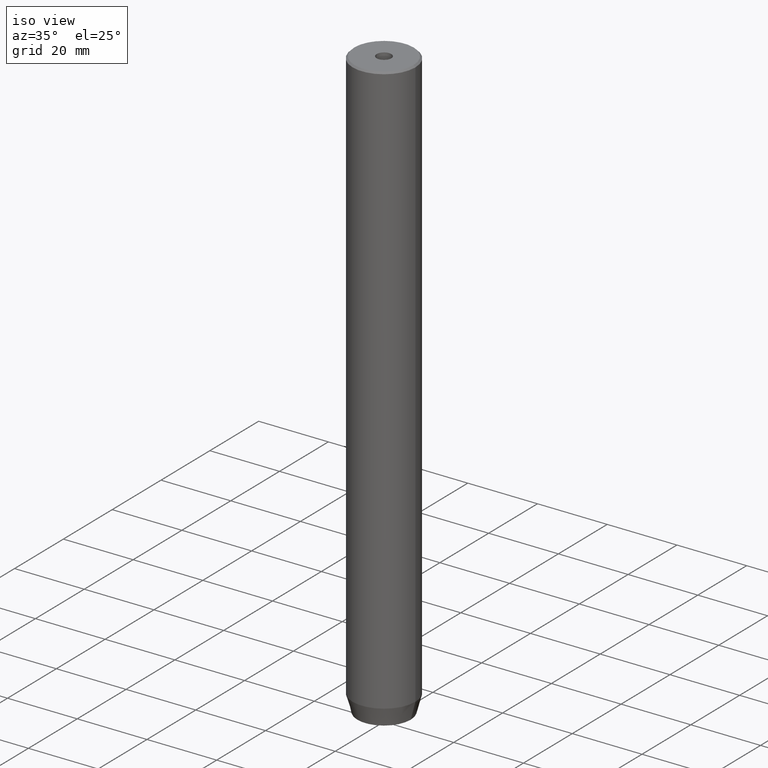
[diagram: clean part render]
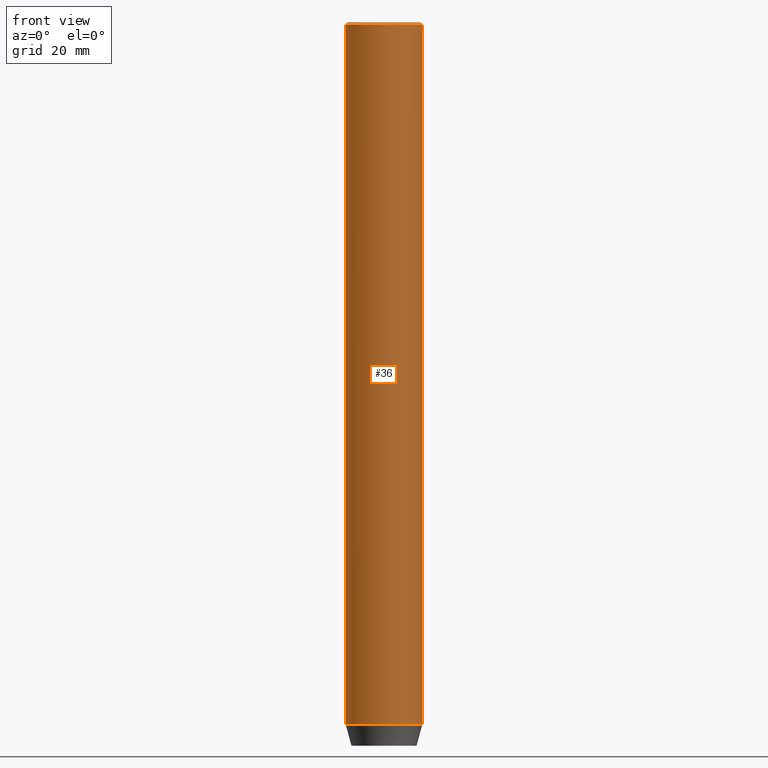
[diagram: tour spotlight — one face highlighted and labeled with its STEP entity id]
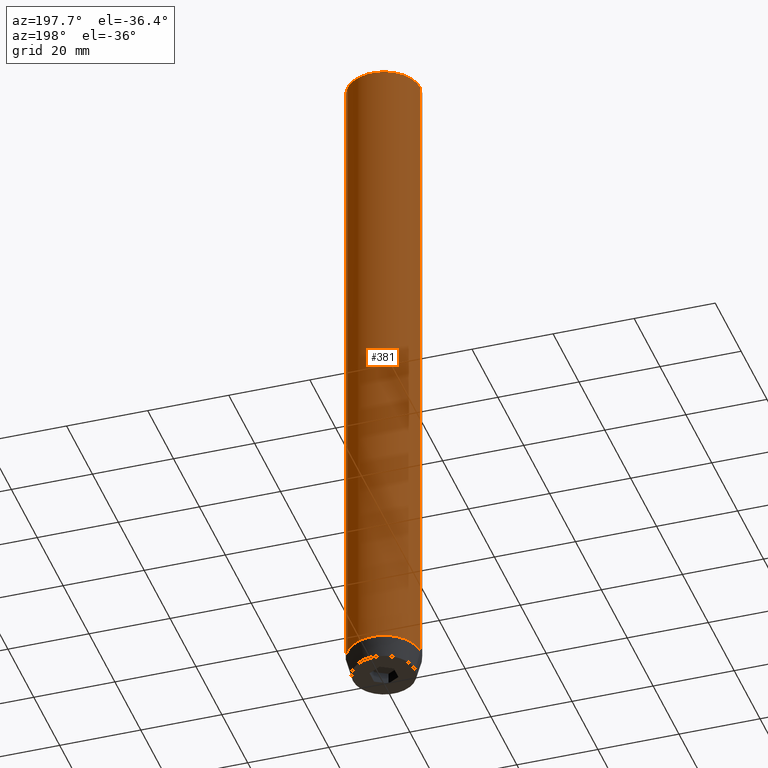
[diagram: tour spotlight — one face highlighted and labeled with its STEP entity id]
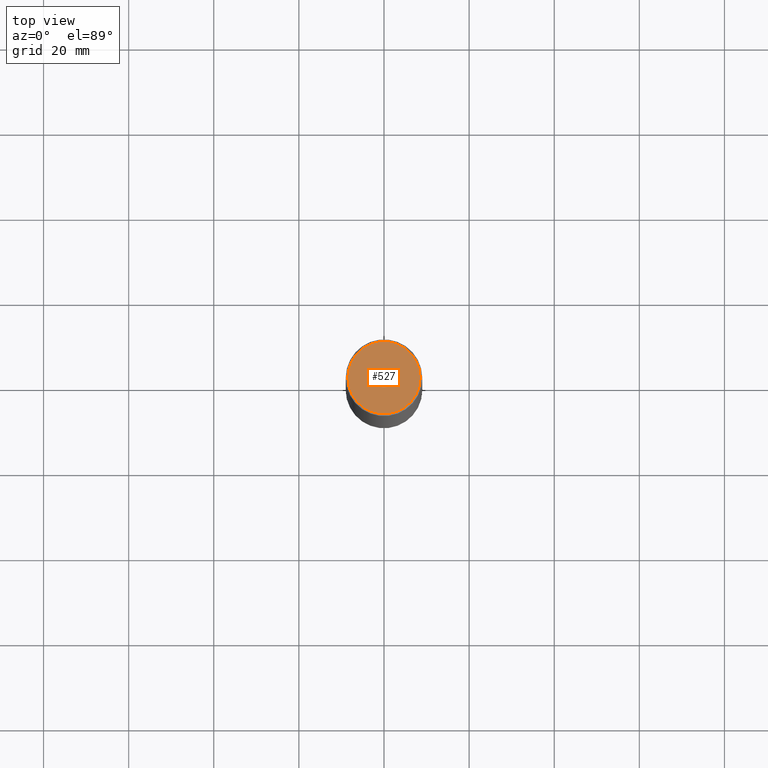
[diagram: tour spotlight — one face highlighted and labeled with its STEP entity id]
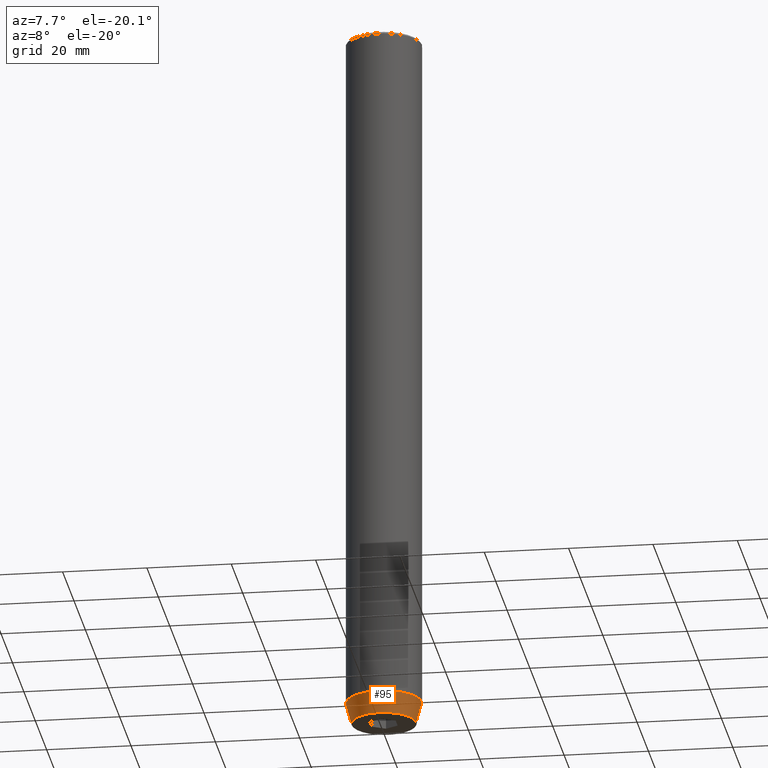
[diagram: tour spotlight — one face highlighted and labeled with its STEP entity id]
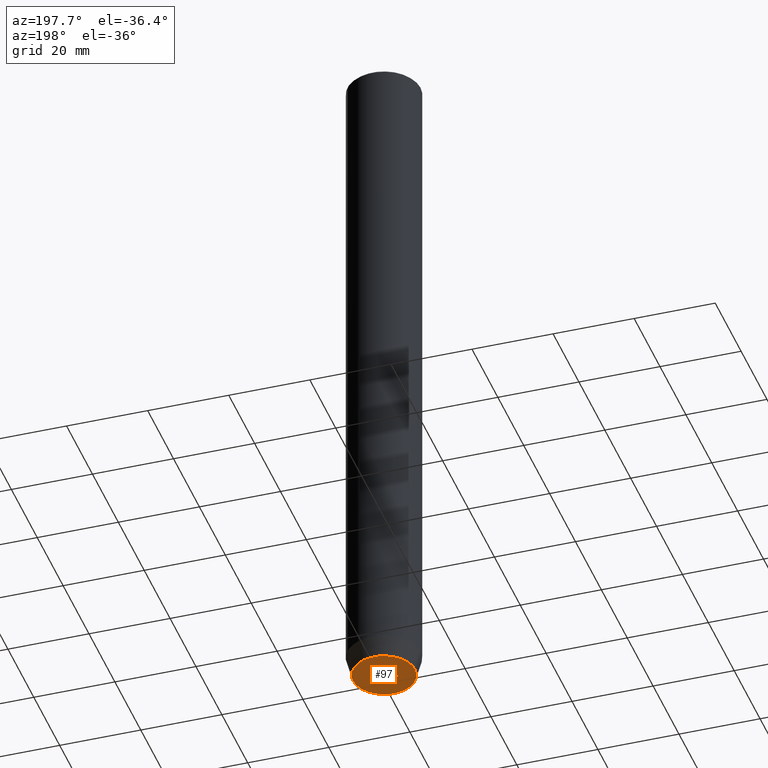
[diagram: tour spotlight — one face highlighted and labeled with its STEP entity id]
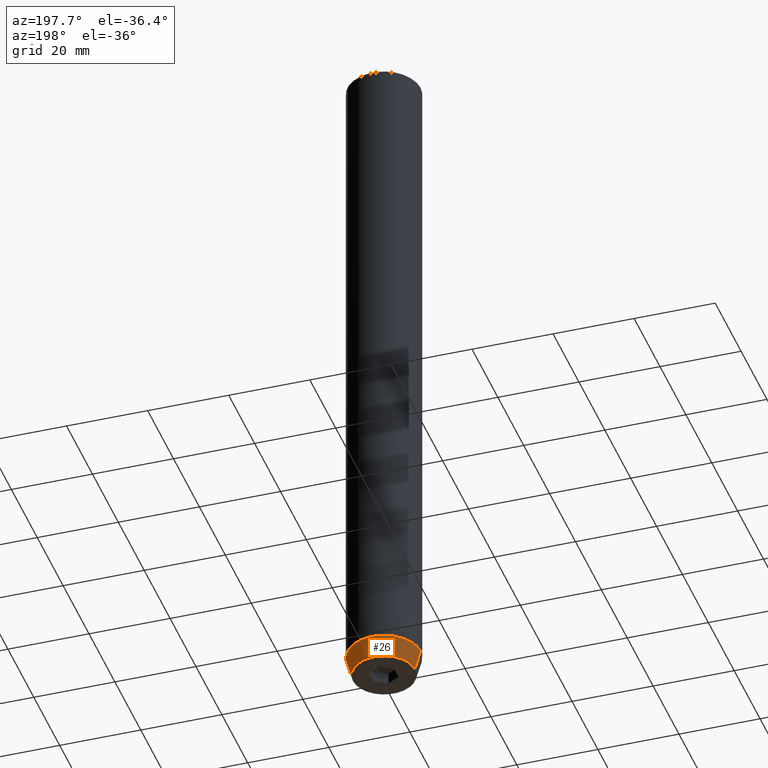
[diagram: tour spotlight — one face highlighted and labeled with its STEP entity id]
A machine part: a face-by-face anatomy tour. The part has 19 B-rep faces; the first image is the clean iso view, then the 6 largest visible faces are spotlighted one at a time (largest first), each with its STEP entity span.

Face 1 — front view, entity #36. In plain terms, the highlighted cylindrical surface (partial cylindrical patch) has radius 9 mm, axis along (-0, -0, 1).
Definition (entity closure, byte-faithful):
#14 = AXIS2_PLACEMENT_3D ( 'NONE', #503, #179, #463 ) ;
#36 = ADVANCED_FACE ( 'NONE', ( #128 ), #65, .T. ) ;
#58 = VERTEX_POINT ( 'NONE', #578 ) ;
#65 = CYLINDRICAL_SURFACE ( 'NONE', #74, 9.000000000000000000 ) ;
#71 = CARTESIAN_POINT ( 'NONE',  ( -9.000000000000000000, 1.102182119232617714E-15, 0.000000000000000000 ) ) ;
#74 = AXIS2_PLACEMENT_3D ( 'NONE', #245, #76, #257 ) ;
#76 = DIRECTION ( 'NONE',  ( -0.000000000000000000, -0.000000000000000000, 1.000000000000000000 ) ) ;
#80 = EDGE_LOOP ( 'NONE', ( #329, #355, #248, #114 ) ) ;
#107 = CIRCLE ( 'NONE', #14, 9.000000000000000000 ) ;
#112 = EDGE_CURVE ( 'NONE', #299, #187, #481, .T. ) ;
#114 = ORIENTED_EDGE ( 'NONE', *, *, #544, .T. ) ;
#128 = FACE_OUTER_BOUND ( 'NONE', #80, .T. ) ;
#162 = CARTESIAN_POINT ( 'NONE',  ( -9.000000000000000000, 1.102182119232617714E-15, -164.9999999999999716 ) ) ;
#179 = DIRECTION ( 'NONE',  ( 0.000000000000000000, 0.000000000000000000, -1.000000000000000000 ) ) ;
#183 = VERTEX_POINT ( 'NONE', #194 ) ;
#187 = VERTEX_POINT ( 'NONE', #347 ) ;
#194 = CARTESIAN_POINT ( 'NONE',  ( 9.000000000000000000, 0.000000000000000000, -0.4999999999999952260 ) ) ;
#213 = DIRECTION ( 'NONE',  ( 1.000000000000000000, 0.000000000000000000, 0.000000000000000000 ) ) ;
#229 = VECTOR ( 'NONE', #561, 1000.000000000000000 ) ;
#231 = AXIS2_PLACEMENT_3D ( 'NONE', #261, #456, #213 ) ;
#245 = CARTESIAN_POINT ( 'NONE',  ( 0.000000000000000000, 0.000000000000000000, 0.000000000000000000 ) ) ;
#248 = ORIENTED_EDGE ( 'NONE', *, *, #451, .T. ) ;
#257 = DIRECTION ( 'NONE',  ( 1.000000000000000000, 0.000000000000000000, 0.000000000000000000 ) ) ;
#261 = CARTESIAN_POINT ( 'NONE',  ( 0.000000000000000000, 0.000000000000000000, -164.9999999999999716 ) ) ;
#276 = CARTESIAN_POINT ( 'NONE',  ( 9.000000000000000000, 0.000000000000000000, 0.000000000000000000 ) ) ;
#299 = VERTEX_POINT ( 'NONE', #162 ) ;
#329 = ORIENTED_EDGE ( 'NONE', *, *, #112, .F. ) ;
#330 = DIRECTION ( 'NONE',  ( -0.000000000000000000, -0.000000000000000000, 1.000000000000000000 ) ) ;
#347 = CARTESIAN_POINT ( 'NONE',  ( -9.000000000000000000, 1.102182119232617714E-15, -0.4999999999999952260 ) ) ;
#355 = ORIENTED_EDGE ( 'NONE', *, *, #357, .T. ) ;
#357 = EDGE_CURVE ( 'NONE', #299, #58, #419, .T. ) ;
#362 = VECTOR ( 'NONE', #330, 1000.000000000000000 ) ;
#419 = CIRCLE ( 'NONE', #231, 9.000000000000000000 ) ;
#451 = EDGE_CURVE ( 'NONE', #58, #183, #552, .T. ) ;
#456 = DIRECTION ( 'NONE',  ( -0.000000000000000000, -0.000000000000000000, 1.000000000000000000 ) ) ;
#463 = DIRECTION ( 'NONE',  ( 1.000000000000000000, 0.000000000000000000, 0.000000000000000000 ) ) ;
#481 = LINE ( 'NONE', #71, #229 ) ;
#503 = CARTESIAN_POINT ( 'NONE',  ( 0.000000000000000000, 0.000000000000000000, -0.4999999999999952260 ) ) ;
#544 = EDGE_CURVE ( 'NONE', #183, #187, #107, .T. ) ;
#552 = LINE ( 'NONE', #276, #362 ) ;
#561 = DIRECTION ( 'NONE',  ( -0.000000000000000000, -0.000000000000000000, 1.000000000000000000 ) ) ;
#578 = CARTESIAN_POINT ( 'NONE',  ( 9.000000000000000000, 0.000000000000000000, -164.9999999999999716 ) ) ;

Face 2 — auxiliary view, entity #381. In plain terms, the highlighted cylindrical surface (partial cylindrical patch) has radius 9 mm, axis along (-0, -0, 1).
Definition (entity closure, byte-faithful):
#2 = ORIENTED_EDGE ( 'NONE', *, *, #175, .T. ) ;
#58 = VERTEX_POINT ( 'NONE', #578 ) ;
#71 = CARTESIAN_POINT ( 'NONE',  ( -9.000000000000000000, 1.102182119232617714E-15, 0.000000000000000000 ) ) ;
#112 = EDGE_CURVE ( 'NONE', #299, #187, #481, .T. ) ;
#142 = AXIS2_PLACEMENT_3D ( 'NONE', #439, #188, #526 ) ;
#162 = CARTESIAN_POINT ( 'NONE',  ( -9.000000000000000000, 1.102182119232617714E-15, -164.9999999999999716 ) ) ;
#170 = CARTESIAN_POINT ( 'NONE',  ( 0.000000000000000000, 0.000000000000000000, 0.000000000000000000 ) ) ;
#175 = EDGE_CURVE ( 'NONE', #187, #183, #331, .T. ) ;
#183 = VERTEX_POINT ( 'NONE', #194 ) ;
#187 = VERTEX_POINT ( 'NONE', #347 ) ;
#188 = DIRECTION ( 'NONE',  ( 0.000000000000000000, 0.000000000000000000, -1.000000000000000000 ) ) ;
#194 = CARTESIAN_POINT ( 'NONE',  ( 9.000000000000000000, 0.000000000000000000, -0.4999999999999952260 ) ) ;
#214 = DIRECTION ( 'NONE',  ( 1.000000000000000000, 0.000000000000000000, 0.000000000000000000 ) ) ;
#229 = VECTOR ( 'NONE', #561, 1000.000000000000000 ) ;
#276 = CARTESIAN_POINT ( 'NONE',  ( 9.000000000000000000, 0.000000000000000000, 0.000000000000000000 ) ) ;
#299 = VERTEX_POINT ( 'NONE', #162 ) ;
#316 = ORIENTED_EDGE ( 'NONE', *, *, #573, .T. ) ;
#321 = ORIENTED_EDGE ( 'NONE', *, *, #112, .T. ) ;
#330 = DIRECTION ( 'NONE',  ( -0.000000000000000000, -0.000000000000000000, 1.000000000000000000 ) ) ;
#331 = CIRCLE ( 'NONE', #142, 9.000000000000000000 ) ;
#347 = CARTESIAN_POINT ( 'NONE',  ( -9.000000000000000000, 1.102182119232617714E-15, -0.4999999999999952260 ) ) ;
#358 = DIRECTION ( 'NONE',  ( -0.000000000000000000, -0.000000000000000000, 1.000000000000000000 ) ) ;
#362 = VECTOR ( 'NONE', #330, 1000.000000000000000 ) ;
#379 = DIRECTION ( 'NONE',  ( 1.000000000000000000, 0.000000000000000000, 0.000000000000000000 ) ) ;
#381 = ADVANCED_FACE ( 'NONE', ( #399 ), #403, .T. ) ;
#384 = CARTESIAN_POINT ( 'NONE',  ( 0.000000000000000000, 0.000000000000000000, -164.9999999999999716 ) ) ;
#399 = FACE_OUTER_BOUND ( 'NONE', #422, .T. ) ;
#401 = ORIENTED_EDGE ( 'NONE', *, *, #451, .F. ) ;
#403 = CYLINDRICAL_SURFACE ( 'NONE', #538, 9.000000000000000000 ) ;
#422 = EDGE_LOOP ( 'NONE', ( #316, #321, #2, #401 ) ) ;
#431 = AXIS2_PLACEMENT_3D ( 'NONE', #384, #480, #379 ) ;
#439 = CARTESIAN_POINT ( 'NONE',  ( 0.000000000000000000, 0.000000000000000000, -0.4999999999999952260 ) ) ;
#451 = EDGE_CURVE ( 'NONE', #58, #183, #552, .T. ) ;
#480 = DIRECTION ( 'NONE',  ( -0.000000000000000000, -0.000000000000000000, 1.000000000000000000 ) ) ;
#481 = LINE ( 'NONE', #71, #229 ) ;
#515 = CIRCLE ( 'NONE', #431, 9.000000000000000000 ) ;
#526 = DIRECTION ( 'NONE',  ( 1.000000000000000000, 0.000000000000000000, 0.000000000000000000 ) ) ;
#538 = AXIS2_PLACEMENT_3D ( 'NONE', #170, #358, #214 ) ;
#552 = LINE ( 'NONE', #276, #362 ) ;
#561 = DIRECTION ( 'NONE',  ( -0.000000000000000000, -0.000000000000000000, 1.000000000000000000 ) ) ;
#573 = EDGE_CURVE ( 'NONE', #58, #299, #515, .T. ) ;
#578 = CARTESIAN_POINT ( 'NONE',  ( 9.000000000000000000, 0.000000000000000000, -164.9999999999999716 ) ) ;

Face 3 — top view, entity #527. In plain terms, the highlighted planar face has unit normal (0, -0, 1).
Definition (entity closure, byte-faithful):
#11 = CARTESIAN_POINT ( 'NONE',  ( 0.000000000000000000, 0.000000000000000000, -1.990051048614449116E-16 ) ) ;
#13 = ORIENTED_EDGE ( 'NONE', *, *, #412, .F. ) ;
#17 = DIRECTION ( 'NONE',  ( 1.000000000000000000, 0.000000000000000000, 0.000000000000000000 ) ) ;
#20 = AXIS2_PLACEMENT_3D ( 'NONE', #335, #30, #17 ) ;
#30 = DIRECTION ( 'NONE',  ( -0.000000000000000000, -0.000000000000000000, 1.000000000000000000 ) ) ;
#37 = DIRECTION ( 'NONE',  ( -0.000000000000000000, -0.000000000000000000, 1.000000000000000000 ) ) ;
#49 = DIRECTION ( 'NONE',  ( 0.000000000000000000, -0.000000000000000000, 1.000000000000000000 ) ) ;
#67 = ORIENTED_EDGE ( 'NONE', *, *, #205, .T. ) ;
#93 = FACE_BOUND ( 'NONE', #147, .T. ) ;
#101 = CARTESIAN_POINT ( 'NONE',  ( -8.500000000000007105, 0.000000000000000000, 0.000000000000000000 ) ) ;
#123 = DIRECTION ( 'NONE',  ( 1.000000000000000000, 0.000000000000000000, 0.000000000000000000 ) ) ;
#134 = EDGE_CURVE ( 'NONE', #546, #393, #374, .T. ) ;
#135 = CIRCLE ( 'NONE', #283, 2.099999999999998757 ) ;
#141 = CARTESIAN_POINT ( 'NONE',  ( 8.500000000000007105, 1.071565949253934321E-15, 0.000000000000000000 ) ) ;
#147 = EDGE_LOOP ( 'NONE', ( #541, #13 ) ) ;
#172 = AXIS2_PLACEMENT_3D ( 'NONE', #569, #524, #123 ) ;
#205 = EDGE_CURVE ( 'NONE', #494, #511, #441, .T. ) ;
#220 = DIRECTION ( 'NONE',  ( 1.000000000000000000, 0.000000000000000000, 0.000000000000000000 ) ) ;
#254 = EDGE_CURVE ( 'NONE', #511, #494, #455, .T. ) ;
#271 = FACE_OUTER_BOUND ( 'NONE', #417, .T. ) ;
#278 = PLANE ( 'NONE',  #409 ) ;
#283 = AXIS2_PLACEMENT_3D ( 'NONE', #11, #508, #545 ) ;
#311 = DIRECTION ( 'NONE',  ( 1.000000000000000000, 0.000000000000000000, 0.000000000000000000 ) ) ;
#314 = CARTESIAN_POINT ( 'NONE',  ( -2.099999999999998757, 2.571758278209440478E-16, -1.990051048614449116E-16 ) ) ;
#335 = CARTESIAN_POINT ( 'NONE',  ( 0.000000000000000000, 0.000000000000000000, -1.990051048614449116E-16 ) ) ;
#374 = CIRCLE ( 'NONE', #20, 2.099999999999998757 ) ;
#393 = VERTEX_POINT ( 'NONE', #314 ) ;
#409 = AXIS2_PLACEMENT_3D ( 'NONE', #461, #49, #220 ) ;
#412 = EDGE_CURVE ( 'NONE', #393, #546, #135, .T. ) ;
#417 = EDGE_LOOP ( 'NONE', ( #442, #67 ) ) ;
#441 = CIRCLE ( 'NONE', #172, 8.500000000000007105 ) ;
#442 = ORIENTED_EDGE ( 'NONE', *, *, #254, .T. ) ;
#455 = CIRCLE ( 'NONE', #525, 8.500000000000007105 ) ;
#461 = CARTESIAN_POINT ( 'NONE',  ( 0.000000000000000000, 0.000000000000000000, 0.000000000000000000 ) ) ;
#465 = CARTESIAN_POINT ( 'NONE',  ( 2.099999999999998757, 0.000000000000000000, -1.990051048614449116E-16 ) ) ;
#492 = CARTESIAN_POINT ( 'NONE',  ( 0.000000000000000000, 0.000000000000000000, 0.000000000000000000 ) ) ;
#494 = VERTEX_POINT ( 'NONE', #141 ) ;
#508 = DIRECTION ( 'NONE',  ( -0.000000000000000000, -0.000000000000000000, 1.000000000000000000 ) ) ;
#511 = VERTEX_POINT ( 'NONE', #101 ) ;
#524 = DIRECTION ( 'NONE',  ( -0.000000000000000000, -0.000000000000000000, 1.000000000000000000 ) ) ;
#525 = AXIS2_PLACEMENT_3D ( 'NONE', #492, #37, #311 ) ;
#527 = ADVANCED_FACE ( 'NONE', ( #93, #271 ), #278, .T. ) ;
#541 = ORIENTED_EDGE ( 'NONE', *, *, #134, .F. ) ;
#545 = DIRECTION ( 'NONE',  ( 1.000000000000000000, 0.000000000000000000, 0.000000000000000000 ) ) ;
#546 = VERTEX_POINT ( 'NONE', #465 ) ;
#569 = CARTESIAN_POINT ( 'NONE',  ( 0.000000000000000000, 0.000000000000000000, 0.000000000000000000 ) ) ;

Face 4 — auxiliary view, entity #95. In plain terms, the highlighted conical surface has half-angle 15 deg.
Definition (entity closure, byte-faithful):
#7 = DIRECTION ( 'NONE',  ( 1.000000000000000000, 0.000000000000000000, 0.000000000000000000 ) ) ;
#28 = CARTESIAN_POINT ( 'NONE',  ( 7.660254037844374864, 0.000000000000000000, -170.0000000000000000 ) ) ;
#46 = CONICAL_SURFACE ( 'NONE', #274, 9.000000000000000000, 0.2617993877991497964 ) ;
#58 = VERTEX_POINT ( 'NONE', #578 ) ;
#95 = ADVANCED_FACE ( 'NONE', ( #153 ), #46, .T. ) ;
#102 = VERTEX_POINT ( 'NONE', #151 ) ;
#122 = DIRECTION ( 'NONE',  ( -0.000000000000000000, -0.000000000000000000, 1.000000000000000000 ) ) ;
#137 = ORIENTED_EDGE ( 'NONE', *, *, #176, .F. ) ;
#143 = CARTESIAN_POINT ( 'NONE',  ( 0.000000000000000000, 0.000000000000000000, -170.0000000000000000 ) ) ;
#148 = DIRECTION ( 'NONE',  ( -0.000000000000000000, -0.000000000000000000, 1.000000000000000000 ) ) ;
#151 = CARTESIAN_POINT ( 'NONE',  ( -7.660254037844374864, 1.020146339021393877E-15, -170.0000000000000000 ) ) ;
#153 = FACE_OUTER_BOUND ( 'NONE', #272, .T. ) ;
#162 = CARTESIAN_POINT ( 'NONE',  ( -9.000000000000000000, 1.102182119232617714E-15, -164.9999999999999716 ) ) ;
#176 = EDGE_CURVE ( 'NONE', #102, #299, #380, .T. ) ;
#192 = CIRCLE ( 'NONE', #457, 7.660254037844374864 ) ;
#193 = EDGE_CURVE ( 'NONE', #217, #58, #529, .T. ) ;
#212 = ORIENTED_EDGE ( 'NONE', *, *, #357, .F. ) ;
#213 = DIRECTION ( 'NONE',  ( 1.000000000000000000, 0.000000000000000000, 0.000000000000000000 ) ) ;
#217 = VERTEX_POINT ( 'NONE', #28 ) ;
#231 = AXIS2_PLACEMENT_3D ( 'NONE', #261, #456, #213 ) ;
#241 = VECTOR ( 'NONE', #340, 1000.000000000000114 ) ;
#261 = CARTESIAN_POINT ( 'NONE',  ( 0.000000000000000000, 0.000000000000000000, -164.9999999999999716 ) ) ;
#272 = EDGE_LOOP ( 'NONE', ( #137, #554, #450, #212 ) ) ;
#274 = AXIS2_PLACEMENT_3D ( 'NONE', #387, #122, #428 ) ;
#299 = VERTEX_POINT ( 'NONE', #162 ) ;
#340 = DIRECTION ( 'NONE',  ( 0.2588190451025210725, 0.000000000000000000, 0.9659258262890680902 ) ) ;
#357 = EDGE_CURVE ( 'NONE', #299, #58, #419, .T. ) ;
#380 = LINE ( 'NONE', #517, #388 ) ;
#385 = CARTESIAN_POINT ( 'NONE',  ( 9.000000000000000000, 0.000000000000000000, -164.9999999999999716 ) ) ;
#387 = CARTESIAN_POINT ( 'NONE',  ( 0.000000000000000000, 0.000000000000000000, -164.9999999999999716 ) ) ;
#388 = VECTOR ( 'NONE', #476, 1000.000000000000114 ) ;
#419 = CIRCLE ( 'NONE', #231, 9.000000000000000000 ) ;
#428 = DIRECTION ( 'NONE',  ( 1.000000000000000000, 0.000000000000000000, 0.000000000000000000 ) ) ;
#450 = ORIENTED_EDGE ( 'NONE', *, *, #193, .T. ) ;
#456 = DIRECTION ( 'NONE',  ( -0.000000000000000000, -0.000000000000000000, 1.000000000000000000 ) ) ;
#457 = AXIS2_PLACEMENT_3D ( 'NONE', #143, #148, #7 ) ;
#476 = DIRECTION ( 'NONE',  ( -0.2588190451025210725, 3.169619151431769255E-17, 0.9659258262890680902 ) ) ;
#510 = EDGE_CURVE ( 'NONE', #102, #217, #192, .T. ) ;
#517 = CARTESIAN_POINT ( 'NONE',  ( -9.000000000000000000, 1.102182119232617714E-15, -164.9999999999999716 ) ) ;
#529 = LINE ( 'NONE', #385, #241 ) ;
#554 = ORIENTED_EDGE ( 'NONE', *, *, #510, .T. ) ;
#578 = CARTESIAN_POINT ( 'NONE',  ( 9.000000000000000000, 0.000000000000000000, -164.9999999999999716 ) ) ;

Face 5 — auxiliary view, entity #97. In plain terms, the highlighted planar face has unit normal (0, 0, -1).
Definition (entity closure, byte-faithful):
#7 = DIRECTION ( 'NONE',  ( 1.000000000000000000, 0.000000000000000000, 0.000000000000000000 ) ) ;
#19 = DIRECTION ( 'NONE',  ( 0.000000000000000000, 0.000000000000000000, -1.000000000000000000 ) ) ;
#25 = CARTESIAN_POINT ( 'NONE',  ( -1.500000000000000666, -2.598076211353316456, -170.0000000000000000 ) ) ;
#28 = CARTESIAN_POINT ( 'NONE',  ( 7.660254037844374864, 0.000000000000000000, -170.0000000000000000 ) ) ;
#34 = VERTEX_POINT ( 'NONE', #341 ) ;
#53 = EDGE_CURVE ( 'NONE', #100, #497, #575, .T. ) ;
#54 = CARTESIAN_POINT ( 'NONE',  ( -3.000000000000000000, -1.732050807568877859, -170.0000000000000000 ) ) ;
#55 = VECTOR ( 'NONE', #390, 1000.000000000000000 ) ;
#59 = LINE ( 'NONE', #288, #55 ) ;
#60 = EDGE_CURVE ( 'NONE', #217, #102, #209, .T. ) ;
#62 = CARTESIAN_POINT ( 'NONE',  ( -1.499999999999999556, 2.598076211353316012, -170.0000000000000000 ) ) ;
#68 = EDGE_CURVE ( 'NONE', #34, #89, #59, .T. ) ;
#88 = CARTESIAN_POINT ( 'NONE',  ( 1.500000000000000222, 2.598076211353315568, -170.0000000000000000 ) ) ;
#89 = VERTEX_POINT ( 'NONE', #113 ) ;
#94 = VECTOR ( 'NONE', #587, 1000.000000000000000 ) ;
#97 = ADVANCED_FACE ( 'NONE', ( #472, #156 ), #191, .T. ) ;
#100 = VERTEX_POINT ( 'NONE', #482 ) ;
#102 = VERTEX_POINT ( 'NONE', #151 ) ;
#104 = AXIS2_PLACEMENT_3D ( 'NONE', #557, #19, #383 ) ;
#111 = LINE ( 'NONE', #198, #540 ) ;
#113 = CARTESIAN_POINT ( 'NONE',  ( 3.000000000000000000, -1.732050807568876527, -170.0000000000000000 ) ) ;
#117 = LINE ( 'NONE', #62, #118 ) ;
#118 = VECTOR ( 'NONE', #243, 999.9999999999998863 ) ;
#125 = DIRECTION ( 'NONE',  ( -0.8660254037844385966, -0.5000000000000001110, 0.000000000000000000 ) ) ;
#136 = CARTESIAN_POINT ( 'NONE',  ( 1.500000000000000222, -2.598076211353315568, -170.0000000000000000 ) ) ;
#143 = CARTESIAN_POINT ( 'NONE',  ( 0.000000000000000000, 0.000000000000000000, -170.0000000000000000 ) ) ;
#148 = DIRECTION ( 'NONE',  ( -0.000000000000000000, -0.000000000000000000, 1.000000000000000000 ) ) ;
#149 = EDGE_CURVE ( 'NONE', #313, #228, #117, .T. ) ;
#151 = CARTESIAN_POINT ( 'NONE',  ( -7.660254037844374864, 1.020146339021393877E-15, -170.0000000000000000 ) ) ;
#156 = FACE_OUTER_BOUND ( 'NONE', #279, .T. ) ;
#160 = DIRECTION ( 'NONE',  ( -0.8660254037844385966, 0.5000000000000001110, 0.000000000000000000 ) ) ;
#171 = CARTESIAN_POINT ( 'NONE',  ( -2.168404344971008868E-16, 3.464101615137753942, -170.0000000000000000 ) ) ;
#191 = PLANE ( 'NONE',  #104 ) ;
#192 = CIRCLE ( 'NONE', #457, 7.660254037844374864 ) ;
#197 = ORIENTED_EDGE ( 'NONE', *, *, #402, .F. ) ;
#198 = CARTESIAN_POINT ( 'NONE',  ( -3.000000000000000444, -7.511572993685800087E-16, -170.0000000000000000 ) ) ;
#208 = ORIENTED_EDGE ( 'NONE', *, *, #568, .F. ) ;
#209 = CIRCLE ( 'NONE', #558, 7.660254037844374864 ) ;
#217 = VERTEX_POINT ( 'NONE', #28 ) ;
#228 = VERTEX_POINT ( 'NONE', #171 ) ;
#236 = ORIENTED_EDGE ( 'NONE', *, *, #149, .F. ) ;
#243 = DIRECTION ( 'NONE',  ( 0.8660254037844387076, 0.4999999999999999445, 0.000000000000000000 ) ) ;
#264 = CARTESIAN_POINT ( 'NONE',  ( -3.000000000000000888, 1.732050807568876527, -170.0000000000000000 ) ) ;
#279 = EDGE_LOOP ( 'NONE', ( #535, #371 ) ) ;
#286 = EDGE_CURVE ( 'NONE', #89, #100, #489, .T. ) ;
#288 = CARTESIAN_POINT ( 'NONE',  ( 3.000000000000000000, 0.000000000000000000, -170.0000000000000000 ) ) ;
#313 = VERTEX_POINT ( 'NONE', #264 ) ;
#341 = CARTESIAN_POINT ( 'NONE',  ( 3.000000000000000000, 1.732050807568876527, -170.0000000000000000 ) ) ;
#343 = VECTOR ( 'NONE', #125, 1000.000000000000000 ) ;
#349 = CARTESIAN_POINT ( 'NONE',  ( 0.000000000000000000, 0.000000000000000000, -170.0000000000000000 ) ) ;
#371 = ORIENTED_EDGE ( 'NONE', *, *, #510, .F. ) ;
#377 = DIRECTION ( 'NONE',  ( 1.000000000000000000, 0.000000000000000000, 0.000000000000000000 ) ) ;
#383 = DIRECTION ( 'NONE',  ( -1.000000000000000000, 0.000000000000000000, -0.000000000000000000 ) ) ;
#390 = DIRECTION ( 'NONE',  ( 0.000000000000000000, -1.000000000000000000, 0.000000000000000000 ) ) ;
#402 = EDGE_CURVE ( 'NONE', #228, #34, #495, .T. ) ;
#411 = ORIENTED_EDGE ( 'NONE', *, *, #68, .F. ) ;
#440 = ORIENTED_EDGE ( 'NONE', *, *, #53, .F. ) ;
#457 = AXIS2_PLACEMENT_3D ( 'NONE', #143, #148, #7 ) ;
#462 = EDGE_LOOP ( 'NONE', ( #236, #208, #440, #490, #411, #197 ) ) ;
#472 = FACE_BOUND ( 'NONE', #462, .T. ) ;
#474 = DIRECTION ( 'NONE',  ( -2.503857664561932376E-16, 1.000000000000000000, 0.000000000000000000 ) ) ;
#482 = CARTESIAN_POINT ( 'NONE',  ( -2.168404344971008868E-16, -3.464101615137754830, -170.0000000000000000 ) ) ;
#489 = LINE ( 'NONE', #136, #343 ) ;
#490 = ORIENTED_EDGE ( 'NONE', *, *, #286, .F. ) ;
#495 = LINE ( 'NONE', #88, #94 ) ;
#497 = VERTEX_POINT ( 'NONE', #54 ) ;
#510 = EDGE_CURVE ( 'NONE', #102, #217, #192, .T. ) ;
#521 = DIRECTION ( 'NONE',  ( -0.000000000000000000, -0.000000000000000000, 1.000000000000000000 ) ) ;
#535 = ORIENTED_EDGE ( 'NONE', *, *, #60, .F. ) ;
#537 = VECTOR ( 'NONE', #160, 1000.000000000000000 ) ;
#540 = VECTOR ( 'NONE', #474, 1000.000000000000000 ) ;
#557 = CARTESIAN_POINT ( 'NONE',  ( 0.000000000000000000, 7.660254037844374864, -170.0000000000000000 ) ) ;
#558 = AXIS2_PLACEMENT_3D ( 'NONE', #349, #521, #377 ) ;
#568 = EDGE_CURVE ( 'NONE', #497, #313, #111, .T. ) ;
#575 = LINE ( 'NONE', #25, #537 ) ;
#587 = DIRECTION ( 'NONE',  ( 0.8660254037844385966, -0.5000000000000001110, 0.000000000000000000 ) ) ;

Face 6 — auxiliary view, entity #26. In plain terms, the highlighted conical surface has half-angle 15 deg.
Definition (entity closure, byte-faithful):
#26 = ADVANCED_FACE ( 'NONE', ( #391 ), #430, .T. ) ;
#28 = CARTESIAN_POINT ( 'NONE',  ( 7.660254037844374864, 0.000000000000000000, -170.0000000000000000 ) ) ;
#58 = VERTEX_POINT ( 'NONE', #578 ) ;
#60 = EDGE_CURVE ( 'NONE', #217, #102, #209, .T. ) ;
#102 = VERTEX_POINT ( 'NONE', #151 ) ;
#139 = ORIENTED_EDGE ( 'NONE', *, *, #193, .F. ) ;
#151 = CARTESIAN_POINT ( 'NONE',  ( -7.660254037844374864, 1.020146339021393877E-15, -170.0000000000000000 ) ) ;
#162 = CARTESIAN_POINT ( 'NONE',  ( -9.000000000000000000, 1.102182119232617714E-15, -164.9999999999999716 ) ) ;
#164 = DIRECTION ( 'NONE',  ( 1.000000000000000000, 0.000000000000000000, 0.000000000000000000 ) ) ;
#176 = EDGE_CURVE ( 'NONE', #102, #299, #380, .T. ) ;
#193 = EDGE_CURVE ( 'NONE', #217, #58, #529, .T. ) ;
#209 = CIRCLE ( 'NONE', #558, 7.660254037844374864 ) ;
#217 = VERTEX_POINT ( 'NONE', #28 ) ;
#241 = VECTOR ( 'NONE', #340, 1000.000000000000114 ) ;
#253 = DIRECTION ( 'NONE',  ( -0.000000000000000000, -0.000000000000000000, 1.000000000000000000 ) ) ;
#292 = CARTESIAN_POINT ( 'NONE',  ( 0.000000000000000000, 0.000000000000000000, -164.9999999999999716 ) ) ;
#299 = VERTEX_POINT ( 'NONE', #162 ) ;
#323 = EDGE_LOOP ( 'NONE', ( #549, #509, #413, #139 ) ) ;
#340 = DIRECTION ( 'NONE',  ( 0.2588190451025210725, 0.000000000000000000, 0.9659258262890680902 ) ) ;
#349 = CARTESIAN_POINT ( 'NONE',  ( 0.000000000000000000, 0.000000000000000000, -170.0000000000000000 ) ) ;
#377 = DIRECTION ( 'NONE',  ( 1.000000000000000000, 0.000000000000000000, 0.000000000000000000 ) ) ;
#379 = DIRECTION ( 'NONE',  ( 1.000000000000000000, 0.000000000000000000, 0.000000000000000000 ) ) ;
#380 = LINE ( 'NONE', #517, #388 ) ;
#384 = CARTESIAN_POINT ( 'NONE',  ( 0.000000000000000000, 0.000000000000000000, -164.9999999999999716 ) ) ;
#385 = CARTESIAN_POINT ( 'NONE',  ( 9.000000000000000000, 0.000000000000000000, -164.9999999999999716 ) ) ;
#388 = VECTOR ( 'NONE', #476, 1000.000000000000114 ) ;
#391 = FACE_OUTER_BOUND ( 'NONE', #323, .T. ) ;
#413 = ORIENTED_EDGE ( 'NONE', *, *, #573, .F. ) ;
#430 = CONICAL_SURFACE ( 'NONE', #477, 9.000000000000000000, 0.2617993877991497964 ) ;
#431 = AXIS2_PLACEMENT_3D ( 'NONE', #384, #480, #379 ) ;
#476 = DIRECTION ( 'NONE',  ( -0.2588190451025210725, 3.169619151431769255E-17, 0.9659258262890680902 ) ) ;
#477 = AXIS2_PLACEMENT_3D ( 'NONE', #292, #253, #164 ) ;
#480 = DIRECTION ( 'NONE',  ( -0.000000000000000000, -0.000000000000000000, 1.000000000000000000 ) ) ;
#509 = ORIENTED_EDGE ( 'NONE', *, *, #176, .T. ) ;
#515 = CIRCLE ( 'NONE', #431, 9.000000000000000000 ) ;
#517 = CARTESIAN_POINT ( 'NONE',  ( -9.000000000000000000, 1.102182119232617714E-15, -164.9999999999999716 ) ) ;
#521 = DIRECTION ( 'NONE',  ( -0.000000000000000000, -0.000000000000000000, 1.000000000000000000 ) ) ;
#529 = LINE ( 'NONE', #385, #241 ) ;
#549 = ORIENTED_EDGE ( 'NONE', *, *, #60, .T. ) ;
#558 = AXIS2_PLACEMENT_3D ( 'NONE', #349, #521, #377 ) ;
#573 = EDGE_CURVE ( 'NONE', #58, #299, #515, .T. ) ;
#578 = CARTESIAN_POINT ( 'NONE',  ( 9.000000000000000000, 0.000000000000000000, -164.9999999999999716 ) ) ;